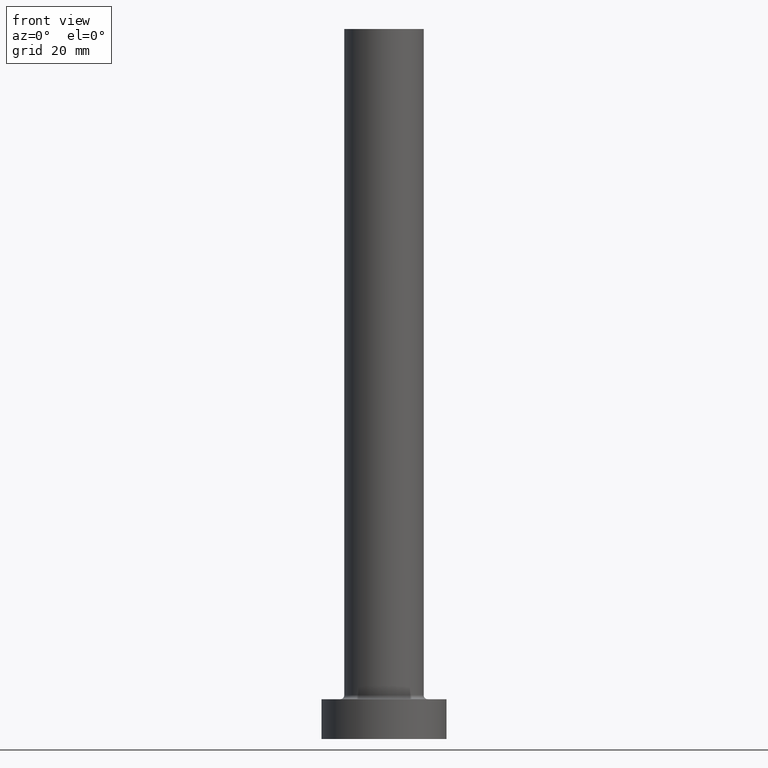
[diagram: clean part render]
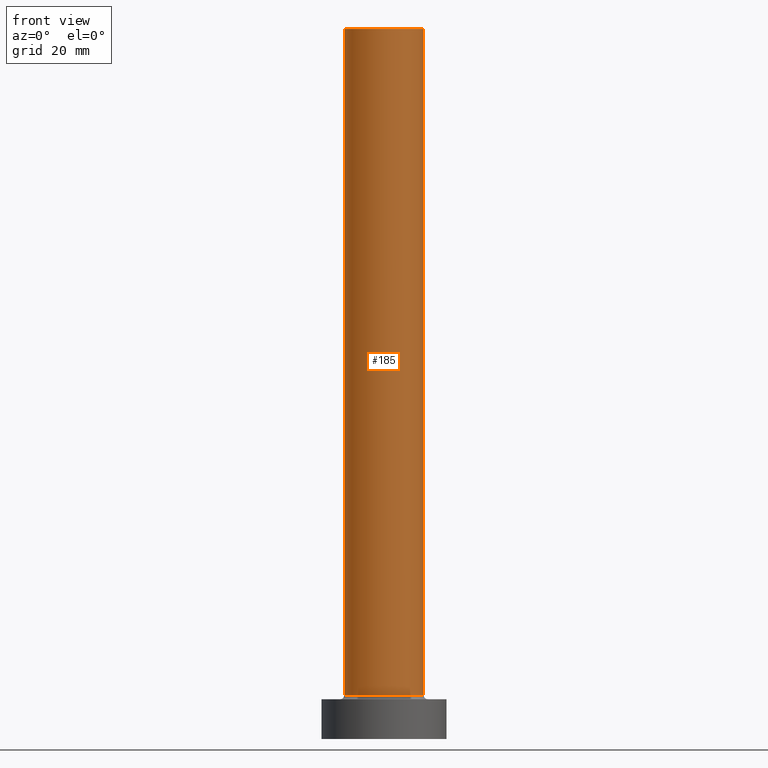
[diagram: same view with one face highlighted and labeled with its STEP entity id]
A machine part, front view. The second image highlights one B-rep face of the part: STEP entity #185.
In plain terms, the highlighted cylindrical surface (partial cylindrical patch) has radius 7 mm, axis along (-0, -0, -1).
Its self-contained STEP definition (entity closure, byte-faithful):
#33 = DIRECTION ( 'NONE',  ( -0.000000000000000000, -0.000000000000000000, -1.000000000000000000 ) ) ;
#40 = DIRECTION ( 'NONE',  ( -1.000000000000000000, 0.000000000000000000, 0.000000000000000000 ) ) ;
#45 = CARTESIAN_POINT ( 'NONE',  ( 0.000000000000000000, 0.000000000000000000, 7.699999999999998401 ) ) ;
#51 = DIRECTION ( 'NONE',  ( 1.000000000000000000, 0.000000000000000000, 0.000000000000000000 ) ) ;
#77 = DIRECTION ( 'NONE',  ( 0.000000000000000000, 0.000000000000000000, 1.000000000000000000 ) ) ;
#89 = ORIENTED_EDGE ( 'NONE', *, *, #435, .T. ) ;
#98 = ORIENTED_EDGE ( 'NONE', *, *, #334, .F. ) ;
#99 = LINE ( 'NONE', #403, #295 ) ;
#102 = LINE ( 'NONE', #211, #186 ) ;
#111 = CARTESIAN_POINT ( 'NONE',  ( 0.000000000000000000, 0.000000000000000000, 125.0000000000000000 ) ) ;
#117 = DIRECTION ( 'NONE',  ( 0.000000000000000000, 0.000000000000000000, 1.000000000000000000 ) ) ;
#124 = EDGE_LOOP ( 'NONE', ( #98, #213, #221, #89 ) ) ;
#147 = EDGE_CURVE ( 'NONE', #359, #286, #446, .T. ) ;
#150 = DIRECTION ( 'NONE',  ( 1.000000000000000000, 0.000000000000000000, 0.000000000000000000 ) ) ;
#178 = CARTESIAN_POINT ( 'NONE',  ( 7.000000000000000888, 8.572527594031474176E-16, 7.699999999999998401 ) ) ;
#185 = ADVANCED_FACE ( 'NONE', ( #351 ), #328, .T. ) ;
#186 = VECTOR ( 'NONE', #279, 1000.000000000000000 ) ;
#211 = CARTESIAN_POINT ( 'NONE',  ( 7.000000000000000888, 8.572527594031474176E-16, 125.0000000000000000 ) ) ;
#212 = CARTESIAN_POINT ( 'NONE',  ( 0.000000000000000000, 0.000000000000000000, 125.0000000000000000 ) ) ;
#213 = ORIENTED_EDGE ( 'NONE', *, *, #147, .F. ) ;
#221 = ORIENTED_EDGE ( 'NONE', *, *, #267, .T. ) ;
#247 = DIRECTION ( 'NONE',  ( -0.000000000000000000, -0.000000000000000000, -1.000000000000000000 ) ) ;
#251 = AXIS2_PLACEMENT_3D ( 'NONE', #212, #117, #150 ) ;
#267 = EDGE_CURVE ( 'NONE', #359, #311, #99, .T. ) ;
#279 = DIRECTION ( 'NONE',  ( -0.000000000000000000, -0.000000000000000000, -1.000000000000000000 ) ) ;
#286 = VERTEX_POINT ( 'NONE', #371 ) ;
#295 = VECTOR ( 'NONE', #247, 1000.000000000000000 ) ;
#311 = VERTEX_POINT ( 'NONE', #414 ) ;
#326 = CARTESIAN_POINT ( 'NONE',  ( -7.000000000000000888, 0.000000000000000000, 125.0000000000000000 ) ) ;
#328 = CYLINDRICAL_SURFACE ( 'NONE', #367, 7.000000000000000888 ) ;
#334 = EDGE_CURVE ( 'NONE', #286, #395, #102, .T. ) ;
#348 = AXIS2_PLACEMENT_3D ( 'NONE', #45, #77, #51 ) ;
#351 = FACE_OUTER_BOUND ( 'NONE', #124, .T. ) ;
#359 = VERTEX_POINT ( 'NONE', #326 ) ;
#367 = AXIS2_PLACEMENT_3D ( 'NONE', #111, #33, #40 ) ;
#371 = CARTESIAN_POINT ( 'NONE',  ( 7.000000000000000888, 8.572527594031474176E-16, 125.0000000000000000 ) ) ;
#395 = VERTEX_POINT ( 'NONE', #178 ) ;
#403 = CARTESIAN_POINT ( 'NONE',  ( -7.000000000000000888, 0.000000000000000000, 125.0000000000000000 ) ) ;
#409 = CIRCLE ( 'NONE', #348, 7.000000000000000888 ) ;
#414 = CARTESIAN_POINT ( 'NONE',  ( -7.000000000000000888, 0.000000000000000000, 7.699999999999998401 ) ) ;
#435 = EDGE_CURVE ( 'NONE', #311, #395, #409, .T. ) ;
#446 = CIRCLE ( 'NONE', #251, 7.000000000000000888 ) ;